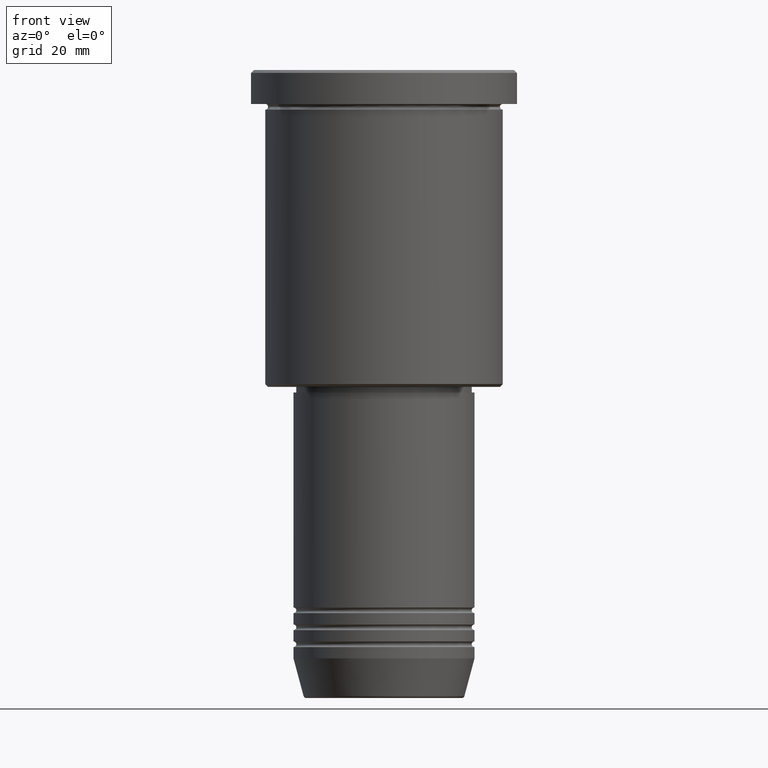
[diagram: clean part render]
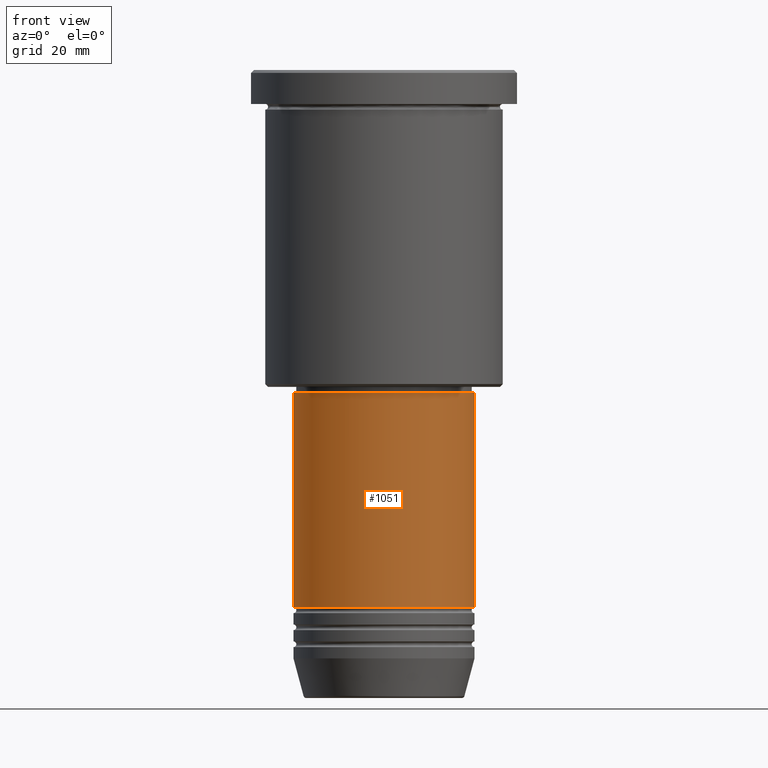
[diagram: same view with one face highlighted and labeled with its STEP entity id]
A machine part, front view. The second image highlights one B-rep face of the part: STEP entity #1051.
In plain terms, the highlighted cylindrical surface (partial cylindrical patch) has radius 16 mm, axis along (-0, -0, 1).
Its self-contained STEP definition (entity closure, byte-faithful):
#5 = EDGE_CURVE ( 'NONE', #1015, #130, #1055, .T. ) ;
#49 = AXIS2_PLACEMENT_3D ( 'NONE', #447, #813, #709 ) ;
#74 = DIRECTION ( 'NONE',  ( 1.000000000000000000, 0.000000000000000000, 0.000000000000000000 ) ) ;
#103 = EDGE_CURVE ( 'NONE', #346, #130, #427, .T. ) ;
#113 = EDGE_CURVE ( 'NONE', #1006, #1015, #614, .T. ) ;
#130 = VERTEX_POINT ( 'NONE', #255 ) ;
#154 = CARTESIAN_POINT ( 'NONE',  ( -16.00000000000000000, 1.959434878635765131E-15, -57.00000000000000000 ) ) ;
#252 = ORIENTED_EDGE ( 'NONE', *, *, #605, .T. ) ;
#255 = CARTESIAN_POINT ( 'NONE',  ( 16.00000000000000000, 0.000000000000000000, -57.00000000000000000 ) ) ;
#258 = VECTOR ( 'NONE', #705, 1000.000000000000000 ) ;
#345 = DIRECTION ( 'NONE',  ( -0.000000000000000000, -0.000000000000000000, 1.000000000000000000 ) ) ;
#346 = VERTEX_POINT ( 'NONE', #839 ) ;
#422 = CARTESIAN_POINT ( 'NONE',  ( 16.00000000000000000, 0.000000000000000000, 0.000000000000000000 ) ) ;
#427 = LINE ( 'NONE', #422, #258 ) ;
#447 = CARTESIAN_POINT ( 'NONE',  ( 0.000000000000000000, 0.000000000000000000, -94.99999999999997158 ) ) ;
#568 = AXIS2_PLACEMENT_3D ( 'NONE', #777, #987, #74 ) ;
#605 = EDGE_CURVE ( 'NONE', #1006, #346, #774, .T. ) ;
#614 = LINE ( 'NONE', #1068, #615 ) ;
#615 = VECTOR ( 'NONE', #345, 1000.000000000000000 ) ;
#679 = FACE_OUTER_BOUND ( 'NONE', #935, .T. ) ;
#687 = CARTESIAN_POINT ( 'NONE',  ( 0.000000000000000000, 0.000000000000000000, -57.00000000000000000 ) ) ;
#695 = ORIENTED_EDGE ( 'NONE', *, *, #5, .F. ) ;
#705 = DIRECTION ( 'NONE',  ( -0.000000000000000000, -0.000000000000000000, 1.000000000000000000 ) ) ;
#709 = DIRECTION ( 'NONE',  ( 1.000000000000000000, 0.000000000000000000, 0.000000000000000000 ) ) ;
#774 = CIRCLE ( 'NONE', #49, 16.00000000000000000 ) ;
#777 = CARTESIAN_POINT ( 'NONE',  ( 0.000000000000000000, 0.000000000000000000, 0.000000000000000000 ) ) ;
#781 = CARTESIAN_POINT ( 'NONE',  ( -16.00000000000000000, 1.959434878635765131E-15, -94.99999999999997158 ) ) ;
#813 = DIRECTION ( 'NONE',  ( -0.000000000000000000, -0.000000000000000000, 1.000000000000000000 ) ) ;
#839 = CARTESIAN_POINT ( 'NONE',  ( 16.00000000000000000, 0.000000000000000000, -94.99999999999997158 ) ) ;
#888 = DIRECTION ( 'NONE',  ( -0.000000000000000000, -0.000000000000000000, 1.000000000000000000 ) ) ;
#935 = EDGE_LOOP ( 'NONE', ( #947, #252, #1104, #695 ) ) ;
#947 = ORIENTED_EDGE ( 'NONE', *, *, #113, .F. ) ;
#949 = CYLINDRICAL_SURFACE ( 'NONE', #568, 16.00000000000000000 ) ;
#970 = DIRECTION ( 'NONE',  ( 1.000000000000000000, 0.000000000000000000, 0.000000000000000000 ) ) ;
#987 = DIRECTION ( 'NONE',  ( -0.000000000000000000, -0.000000000000000000, 1.000000000000000000 ) ) ;
#1006 = VERTEX_POINT ( 'NONE', #781 ) ;
#1015 = VERTEX_POINT ( 'NONE', #154 ) ;
#1051 = ADVANCED_FACE ( 'NONE', ( #679 ), #949, .T. ) ;
#1055 = CIRCLE ( 'NONE', #1169, 16.00000000000000000 ) ;
#1068 = CARTESIAN_POINT ( 'NONE',  ( -16.00000000000000000, 1.959434878635765131E-15, 0.000000000000000000 ) ) ;
#1104 = ORIENTED_EDGE ( 'NONE', *, *, #103, .T. ) ;
#1169 = AXIS2_PLACEMENT_3D ( 'NONE', #687, #888, #970 ) ;